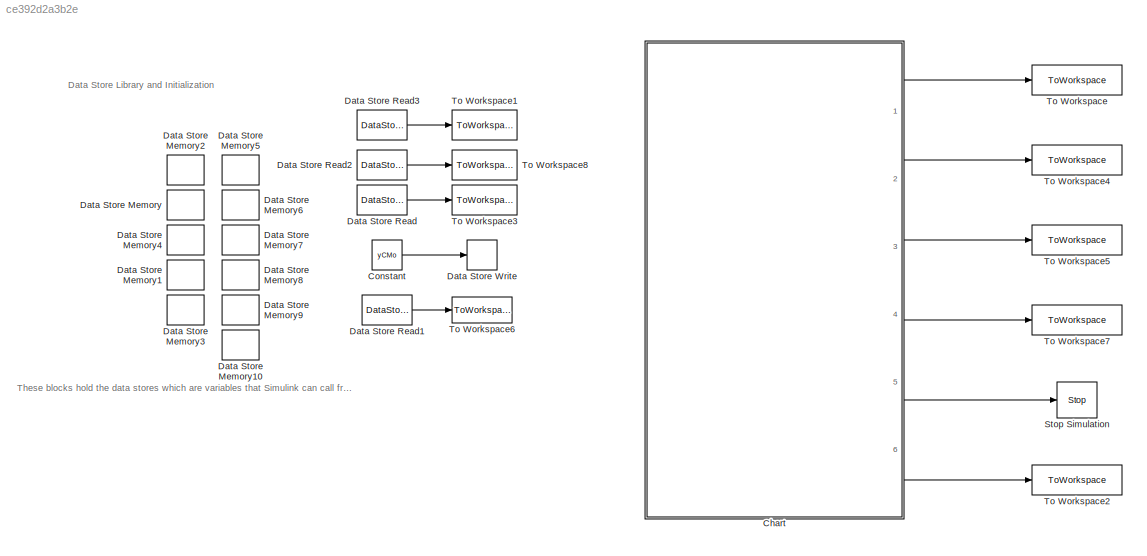
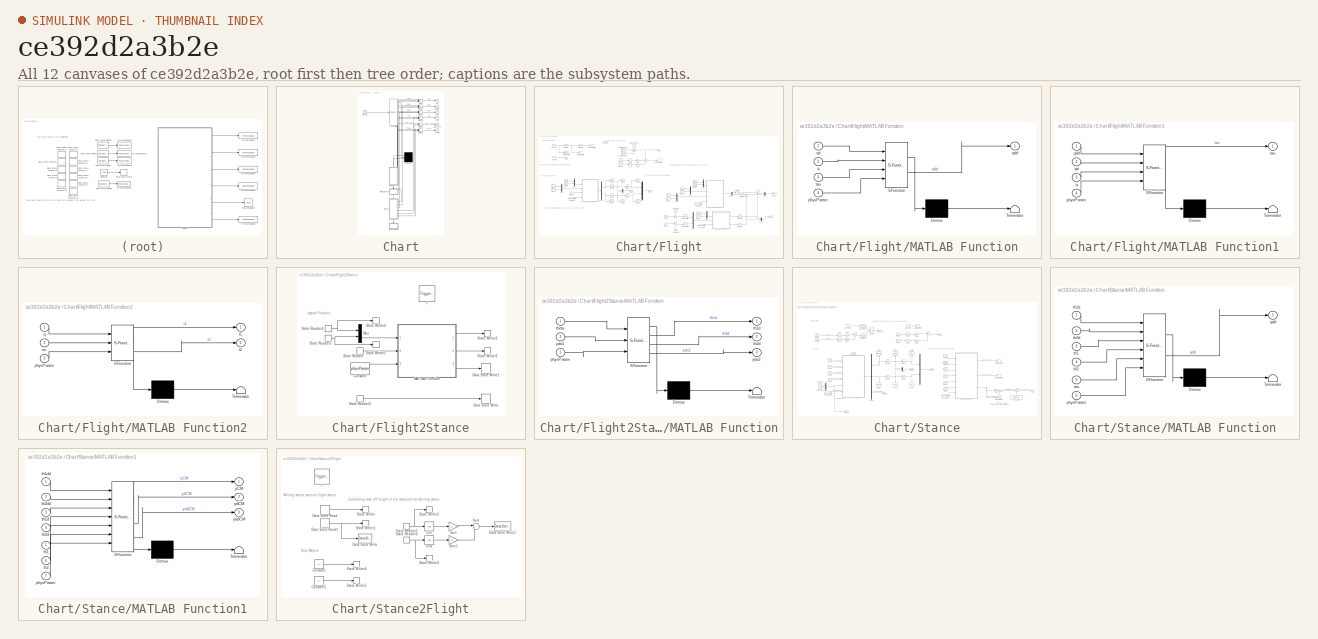
[diagram: thumbnail index - all 12 canvases of the model, root first then tree order]
MODEL slx_ce392d2a3b2e
KIND model
CONFIG AbsTol = auto
CONFIG EnableMultiTasking = off
CONFIG FixedStep = auto
CONFIG MaxStep = 1E-4
CONFIG MinStep = auto
CONFIG RelTol = 1e-9
CONFIG SampleTimeConstraint = Unconstrained
CONFIG SolverName = VariableStepAuto
CONFIG StartTime = 0.0
CONFIG StopTime = inf
BLOCK [SubSystem] Chart
  ErrorFcn = Stateflow.Translate.translate
  PermitHierarchicalResolution = ExplicitOnly
  Ports = [0, 6]
  RequestExecContextInheritance = off
  SFBlockType = Chart
  TreatAsAtomicUnit = on
BLOCK [Demux] Chart/ Demux 
  Outputs = 2
  Ports = [1, 2]
BLOCK [Ground] Chart/ Ground 
BLOCK [Merge] Chart/ Merge 
  Inputs = 3
  Ports = [3, 1]
BLOCK [Merge] Chart/ Merge 1
  Inputs = 3
  Ports = [3, 1]
BLOCK [Merge] Chart/ Merge 2
  Inputs = 3
  Ports = [3, 1]
BLOCK [Merge] Chart/ Merge 3
  Inputs = 3
  Ports = [3, 1]
BLOCK [Merge] Chart/ Merge 4
  Ports = [2, 1]
BLOCK [Merge] Chart/ Merge 5
  Inputs = 3
  Ports = [3, 1]
BLOCK [S-Function] Chart/ SFunction 
  EnableBusSupport = on
  FunctionName = sf_sfun
  PortCounts = [1 7]
  Ports = [1, 7]
  SFcnIsStateOwnerBlock = off
  SFunctionDeploymentMode = off
  Tag = Stateflow S-Function 3
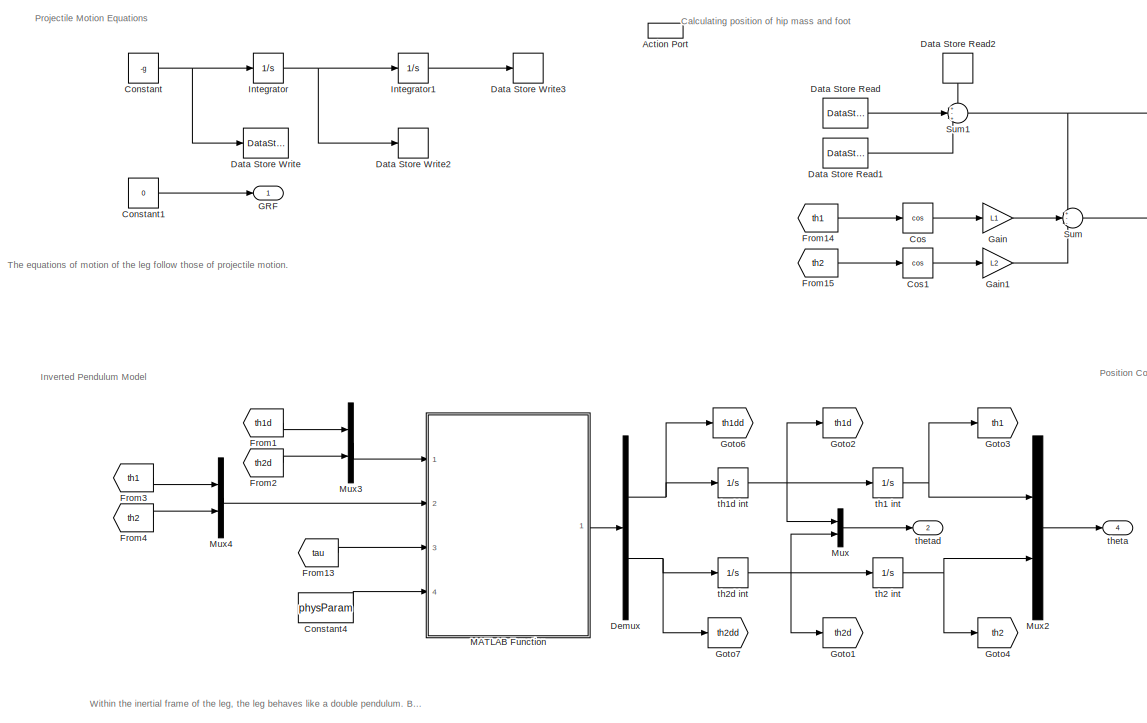
[diagram: Chart/Flight - part 1/3, middle left region]
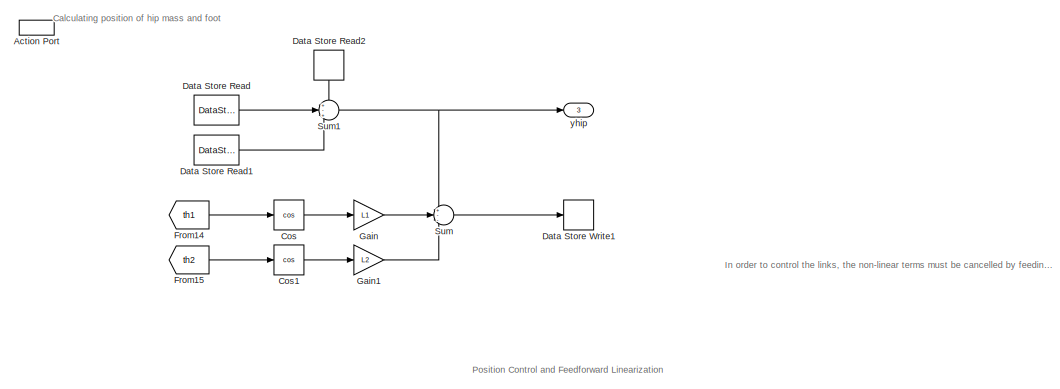
[diagram: Chart/Flight - part 2/3, top center region]
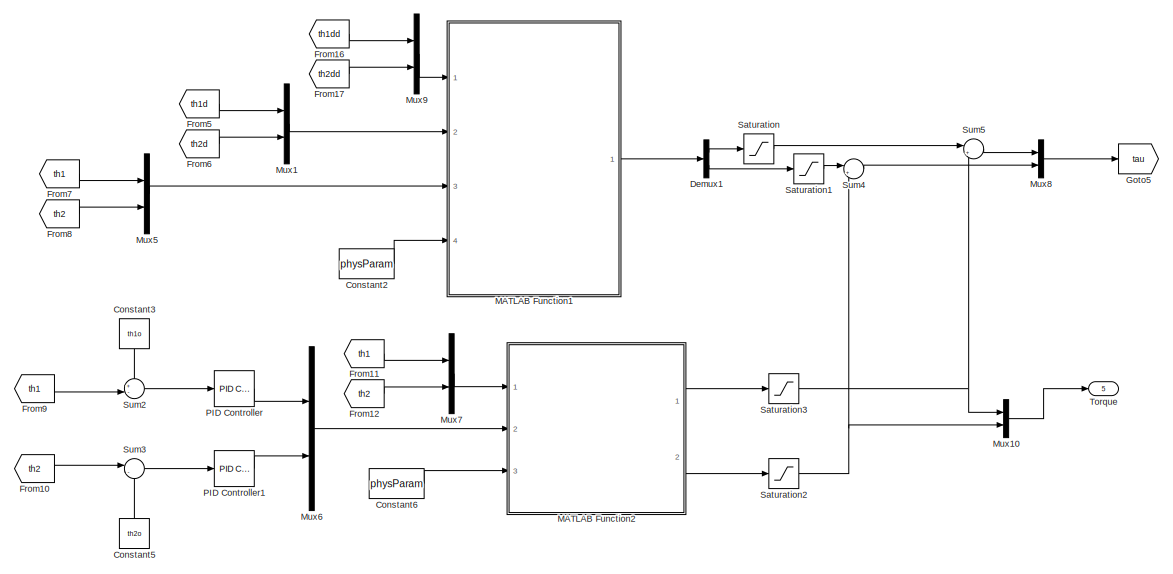
[diagram: Chart/Flight - part 3/3, bottom right region]
BLOCK [SubSystem] Chart/Flight
  Ports = [0, 5, 0, 0, 0, 0, 0, 1]
  PreDeleteFcn = Stateflow.SLINSF.SimulinkMan.removePreDeleteFcn
  RequestExecContextInheritance = off
  UndoDeleteFcn = Stateflow.SLINSF.SimulinkMan.restorePreDeleteFcn
BLOCK [ActionPort] Chart/Flight/Action Port
  CopyFcn = Stateflow.SLINSF.SimulinkMan.removeBlockPreDeleteFcn
  PreDeleteFcn = Stateflow.SLINSF.SimulinkMan.unsafePredeleteFcn
BLOCK [Constant] Chart/Flight/Constant
  Value = -g
BLOCK [Constant] Chart/Flight/Constant1
  Value = 0
BLOCK [Constant] Chart/Flight/Constant2
  Value = physParam
BLOCK [Constant] Chart/Flight/Constant3
  NameLocation = left
  Value = th1o
BLOCK [Constant] Chart/Flight/Constant4
  Value = physParam
BLOCK [Constant] Chart/Flight/Constant5
  NameLocation = right
  Value = th2o
BLOCK [Constant] Chart/Flight/Constant6
  Value = physParam
BLOCK [Trigonometry] Chart/Flight/Cos
  Operator = cos
  Ports = [1, 1]
BLOCK [Trigonometry] Chart/Flight/Cos1
  Operator = cos
  Ports = [1, 1]
BLOCK [DataStoreRead] Chart/Flight/Data Store Read
  DataStoreName = yCMTO
  Ports = [0, 1]
BLOCK [DataStoreRead] Chart/Flight/Data Store Read1
  DataStoreName = yhipTO
  Ports = [0, 1]
BLOCK [DataStoreRead] Chart/Flight/Data Store Read2
  DataStoreName = yCM
  NameLocation = left
  Ports = [0, 1]
BLOCK [DataStoreWrite] Chart/Flight/Data Store Write
  DataStoreName = yddCM
  Ports = [1]
BLOCK [DataStoreWrite] Chart/Flight/Data Store Write1
  DataStoreName = yfoot
  Ports = [1]
BLOCK [DataStoreWrite] Chart/Flight/Data Store Write2
  DataStoreName = ydCM
  Ports = [1]
BLOCK [DataStoreWrite] Chart/Flight/Data Store Write3
  DataStoreName = yCM
  Ports = [1]
BLOCK [Demux] Chart/Flight/Demux
  Outputs = 2
  Ports = [1, 2]
BLOCK [Demux] Chart/Flight/Demux1
  Outputs = 2
  Ports = [1, 2]
BLOCK [From] Chart/Flight/From1
  GotoTag = th1d
BLOCK [From] Chart/Flight/From10
  GotoTag = th2
BLOCK [From] Chart/Flight/From11
  GotoTag = th1
BLOCK [From] Chart/Flight/From12
  GotoTag = th2
BLOCK [From] Chart/Flight/From13
  GotoTag = tau
BLOCK [From] Chart/Flight/From14
  GotoTag = th1
BLOCK [From] Chart/Flight/From15
  GotoTag = th2
BLOCK [From] Chart/Flight/From16
  GotoTag = th1dd
BLOCK [From] Chart/Flight/From17
  GotoTag = th2dd
BLOCK [From] Chart/Flight/From2
  GotoTag = th2d
BLOCK [From] Chart/Flight/From3
  GotoTag = th1
BLOCK [From] Chart/Flight/From4
  GotoTag = th2
BLOCK [From] Chart/Flight/From5
  GotoTag = th1d
BLOCK [From] Chart/Flight/From6
  GotoTag = th2d
BLOCK [From] Chart/Flight/From7
  GotoTag = th1
BLOCK [From] Chart/Flight/From8
  GotoTag = th2
BLOCK [From] Chart/Flight/From9
  GotoTag = th1
BLOCK [Outport] Chart/Flight/GRF
BLOCK [Gain] Chart/Flight/Gain
  Gain = L1
BLOCK [Gain] Chart/Flight/Gain1
  Gain = L2
BLOCK [Goto] Chart/Flight/Goto1
  GotoTag = th2d
BLOCK [Goto] Chart/Flight/Goto2
  GotoTag = th1d
BLOCK [Goto] Chart/Flight/Goto3
  GotoTag = th1
BLOCK [Goto] Chart/Flight/Goto4
  GotoTag = th2
BLOCK [Goto] Chart/Flight/Goto5
  GotoTag = tau
BLOCK [Goto] Chart/Flight/Goto6
  GotoTag = th1dd
BLOCK [Goto] Chart/Flight/Goto7
  GotoTag = th2dd
BLOCK [Integrator] Chart/Flight/Integrator
  ContinuousStateAttributes = 'ydCM'
  Ports = [1, 1]
BLOCK [Integrator] Chart/Flight/Integrator1
  ContinuousStateAttributes = 'yCM'
  InitialCondition = initHeight
  Ports = [1, 1]
BLOCK [SubSystem] Chart/Flight/MATLAB Function
  ErrorFcn = Stateflow.Translate.translate
  PermitHierarchicalResolution = ExplicitOnly
  Ports = [4, 1]
  RequestExecContextInheritance = off
  SFBlockType = MATLAB Function
  TreatAsAtomicUnit = on
BLOCK [Demux] Chart/Flight/MATLAB Function/ Demux 
  Outputs = 1
  Ports = [1, 1]
BLOCK [S-Function] Chart/Flight/MATLAB Function/ SFunction 
  EnableBusSupport = off
  FunctionName = sf_sfun
  PortCounts = [4 2]
  Ports = [4, 2]
  SFcnIsStateOwnerBlock = off
  SFunctionDeploymentMode = off
  Tag = Stateflow S-Function 5
BLOCK [Terminator] Chart/Flight/MATLAB Function/ Terminator 
BLOCK [Inport] Chart/Flight/MATLAB Function/physParam
  Port = 4
BLOCK [Inport] Chart/Flight/MATLAB Function/q
  Port = 2
BLOCK [Inport] Chart/Flight/MATLAB Function/qd
BLOCK [Outport] Chart/Flight/MATLAB Function/qdd
BLOCK [Inport] Chart/Flight/MATLAB Function/tau
  Port = 3
BLOCK [SubSystem] Chart/Flight/MATLAB Function1
  ErrorFcn = Stateflow.Translate.translate
  PermitHierarchicalResolution = ExplicitOnly
  Ports = [4, 1]
  RequestExecContextInheritance = off
  SFBlockType = MATLAB Function
  TreatAsAtomicUnit = on
BLOCK [Demux] Chart/Flight/MATLAB Function1/ Demux 
  Outputs = 1
  Ports = [1, 1]
BLOCK [S-Function] Chart/Flight/MATLAB Function1/ SFunction 
  EnableBusSupport = off
  FunctionName = sf_sfun
  PortCounts = [4 2]
  Ports = [4, 2]
  SFcnIsStateOwnerBlock = off
  SFunctionDeploymentMode = off
  Tag = Stateflow S-Function 6
BLOCK [Terminator] Chart/Flight/MATLAB Function1/ Terminator 
BLOCK [Inport] Chart/Flight/MATLAB Function1/physParam
  Port = 4
BLOCK [Inport] Chart/Flight/MATLAB Function1/q
  Port = 3
BLOCK [Inport] Chart/Flight/MATLAB Function1/qd
  Port = 2
BLOCK [Inport] Chart/Flight/MATLAB Function1/qdd
BLOCK [Outport] Chart/Flight/MATLAB Function1/tau
BLOCK [SubSystem] Chart/Flight/MATLAB Function2
  ErrorFcn = Stateflow.Translate.translate
  PermitHierarchicalResolution = ExplicitOnly
  Ports = [3, 2]
  RequestExecContextInheritance = off
  SFBlockType = MATLAB Function
  TreatAsAtomicUnit = on
BLOCK [Demux] Chart/Flight/MATLAB Function2/ Demux 
  Outputs = 1
  Ports = [1, 1]
BLOCK [S-Function] Chart/Flight/MATLAB Function2/ SFunction 
  EnableBusSupport = off
  FunctionName = sf_sfun
  PortCounts = [3 3]
  Ports = [3, 3]
  SFcnIsStateOwnerBlock = off
  SFunctionDeploymentMode = off
  Tag = Stateflow S-Function 7
BLOCK [Terminator] Chart/Flight/MATLAB Function2/ Terminator 
BLOCK [Inport] Chart/Flight/MATLAB Function2/err
  Port = 2
BLOCK [Inport] Chart/Flight/MATLAB Function2/physParam
  Port = 3
BLOCK [Inport] Chart/Flight/MATLAB Function2/q
BLOCK [Outport] Chart/Flight/MATLAB Function2/t1
BLOCK [Outport] Chart/Flight/MATLAB Function2/t2
  Port = 2
BLOCK [Mux] Chart/Flight/Mux
  DisplayOption = bar
  Inputs = 2
  Ports = [2, 1]
BLOCK [Mux] Chart/Flight/Mux1
  DisplayOption = bar
  Inputs = 2
  Ports = [2, 1]
BLOCK [Mux] Chart/Flight/Mux10
  DisplayOption = bar
  Inputs = 2
  Ports = [2, 1]
BLOCK [Mux] Chart/Flight/Mux2
  DisplayOption = bar
  Inputs = 2
  Ports = [2, 1]
BLOCK [Mux] Chart/Flight/Mux3
  DisplayOption = bar
  Inputs = 2
  Ports = [2, 1]
BLOCK [Mux] Chart/Flight/Mux4
  DisplayOption = bar
  Inputs = 2
  Ports = [2, 1]
BLOCK [Mux] Chart/Flight/Mux5
  DisplayOption = bar
  Inputs = 2
  Ports = [2, 1]
BLOCK [Mux] Chart/Flight/Mux6
  DisplayOption = bar
  Inputs = 2
  Ports = [2, 1]
BLOCK [Mux] Chart/Flight/Mux7
  DisplayOption = bar
  Inputs = 2
  Ports = [2, 1]
BLOCK [Mux] Chart/Flight/Mux8
  DisplayOption = bar
  Inputs = 2
  Ports = [2, 1]
BLOCK [Mux] Chart/Flight/Mux9
  DisplayOption = bar
  Inputs = 2
  Ports = [2, 1]
BLOCK [Reference] Chart/Flight/PID Controller  REF=pid_lib/PID Controller
  Ports = [1, 1]
  SourceBlock = pid_lib/PID Controller
  SourceProductBaseCode = SL
  SourceType = PID 1dof
BLOCK [Reference] Chart/Flight/PID Controller1  REF=pid_lib/PID Controller
  Ports = [1, 1]
  SourceBlock = pid_lib/PID Controller
  SourceProductBaseCode = SL
  SourceType = PID 1dof
BLOCK [Saturate] Chart/Flight/Saturation
  LowerLimit = -8
  UpperLimit = 8
BLOCK [Saturate] Chart/Flight/Saturation1
  LowerLimit = -8
  UpperLimit = 8
BLOCK [Saturate] Chart/Flight/Saturation2
  LowerLimit = -5
  UpperLimit = 5
BLOCK [Saturate] Chart/Flight/Saturation3
  LowerLimit = -5
  UpperLimit = 5
BLOCK [Sum] Chart/Flight/Sum
  Inputs = +--
  Ports = [3, 1]
BLOCK [Sum] Chart/Flight/Sum1
  Inputs = +-+
  Ports = [3, 1]
BLOCK [Sum] Chart/Flight/Sum2
  Inputs = +-|
  Ports = [2, 1]
BLOCK [Sum] Chart/Flight/Sum3
  Inputs = |-+
  Ports = [2, 1]
BLOCK [Sum] Chart/Flight/Sum4
  Inputs = |++
  Ports = [2, 1]
BLOCK [Sum] Chart/Flight/Sum5
  Inputs = |++
  Ports = [2, 1]
BLOCK [Outport] Chart/Flight/Torque
  Port = 5
BLOCK [Integrator] Chart/Flight/th1 int
  ContinuousStateAttributes = 'th1'
  InitialCondition = th1o
  Ports = [1, 1]
BLOCK [Integrator] Chart/Flight/th1d int
  ContinuousStateAttributes = 'th1d'
  Ports = [1, 1]
BLOCK [Integrator] Chart/Flight/th2 int
  ContinuousStateAttributes = 'th2'
  InitialCondition = th2o
  Ports = [1, 1]
BLOCK [Integrator] Chart/Flight/th2d int
  ContinuousStateAttributes = 'th2d'
  Ports = [1, 1]
BLOCK [Outport] Chart/Flight/theta
  Port = 4
BLOCK [Outport] Chart/Flight/thetad
  Port = 2
BLOCK [Outport] Chart/Flight/yhip
  Port = 3
BLOCK [SubSystem] Chart/Flight2Stance
  Ports = [0, 0, 0, 1]
  PreDeleteFcn = Stateflow.SLINSF.SimulinkMan.removePreDeleteFcn
  RequestExecContextInheritance = off
  UndoDeleteFcn = Stateflow.SLINSF.SimulinkMan.restorePreDeleteFcn
BLOCK [Constant] Chart/Flight2Stance/Constant
  Value = physParam
BLOCK [DataStoreWrite] Chart/Flight2Stance/Data Store Write
  DataStoreName = yCM
  Ports = [1]
BLOCK [DataStoreWrite] Chart/Flight2Stance/Data Store Write1
  DataStoreName = ydCM
  Ports = [1]
BLOCK [SubSystem] Chart/Flight2Stance/MATLAB Function
  ErrorFcn = Stateflow.Translate.translate
  PermitHierarchicalResolution = ExplicitOnly
  Ports = [3, 3]
  RequestExecContextInheritance = off
  SFBlockType = MATLAB Function
  TreatAsAtomicUnit = on
BLOCK [Demux] Chart/Flight2Stance/MATLAB Function/ Demux 
  Outputs = 1
  Ports = [1, 1]
BLOCK [S-Function] Chart/Flight2Stance/MATLAB Function/ SFunction 
  EnableBusSupport = off
  FunctionName = sf_sfun
  PortCounts = [3 4]
  Ports = [3, 4]
  SFcnIsStateOwnerBlock = off
  SFunctionDeploymentMode = off
  Tag = Stateflow S-Function 4
BLOCK [Terminator] Chart/Flight2Stance/MATLAB Function/ Terminator 
BLOCK [Inport] Chart/Flight2Stance/MATLAB Function/physParam
  Port = 3
BLOCK [Outport] Chart/Flight2Stance/MATLAB Function/th1d
BLOCK [Outport] Chart/Flight2Stance/MATLAB Function/th2d
  Port = 2
BLOCK [Inport] Chart/Flight2Stance/MATLAB Function/theta
BLOCK [Inport] Chart/Flight2Stance/MATLAB Function/ydo1
  Port = 2
BLOCK [Outport] Chart/Flight2Stance/MATLAB Function/ydo2
  Port = 3
BLOCK [Mux] Chart/Flight2Stance/Mux
  DisplayOption = bar
  Inputs = 2
  Ports = [2, 1]
BLOCK [StateReader] Chart/Flight2Stance/State Reader
  StateName = ydCM
  StateOwnerBlock = ../../Flight/Integrator
BLOCK [StateReader] Chart/Flight2Stance/State Reader3
  StateName = yCM
  StateOwnerBlock = ../../Flight/Integrator1
BLOCK [StateReader] Chart/Flight2Stance/State Reader4
  StateName = th1
  StateOwnerBlock = ../../Flight/th1 int
BLOCK [StateReader] Chart/Flight2Stance/State Reader5
  StateName = th2
  StateOwnerBlock = ../../Flight/th2 int
BLOCK [StateWriter] Chart/Flight2Stance/State Writer2
  StateName = th1d
  StateOwnerBlock = ../../Stance/th1d int.
BLOCK [StateWriter] Chart/Flight2Stance/State Writer3
  StateName = th2d
  StateOwnerBlock = ../../Stance/th2d int.
BLOCK [StateWriter] Chart/Flight2Stance/State Writer4
  StateName = th1
  StateOwnerBlock = ../../Stance/th1 int.
BLOCK [StateWriter] Chart/Flight2Stance/State Writer5
  StateName = th2
  StateOwnerBlock = ../../Stance/th2 int.
BLOCK [TriggerPort] Chart/Flight2Stance/f
  CopyFcn = Stateflow.SLINSF.SimulinkMan.removeBlockPreDeleteFcn
  Ports = []
  PreDeleteFcn = Stateflow.SLINSF.SimulinkMan.unsafePredeleteFcn
  StatesWhenEnabling = held
  TriggerType = function-call
  VariantControl = (inherit)
BLOCK [Outport] Chart/GRF
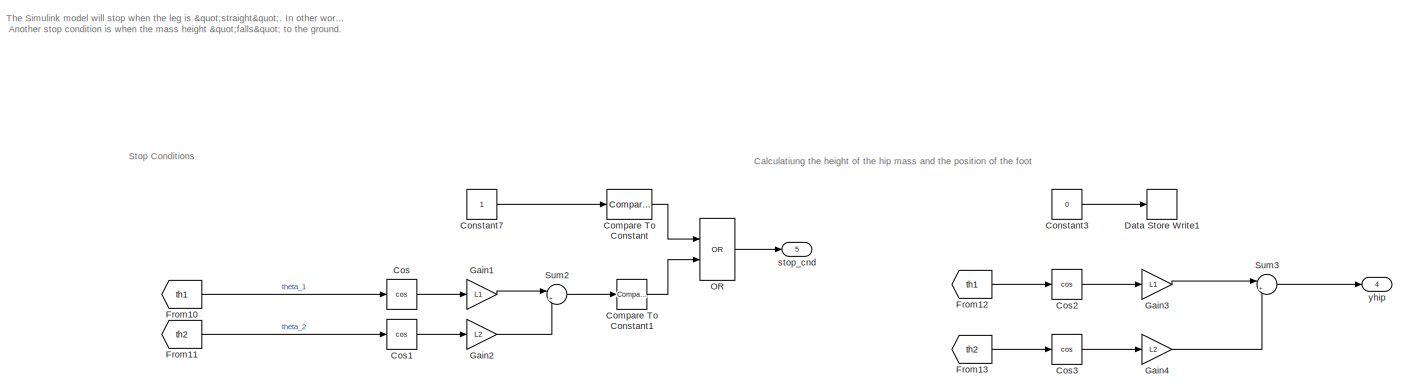
[diagram: Chart/Stance - part 1/3, top left region]
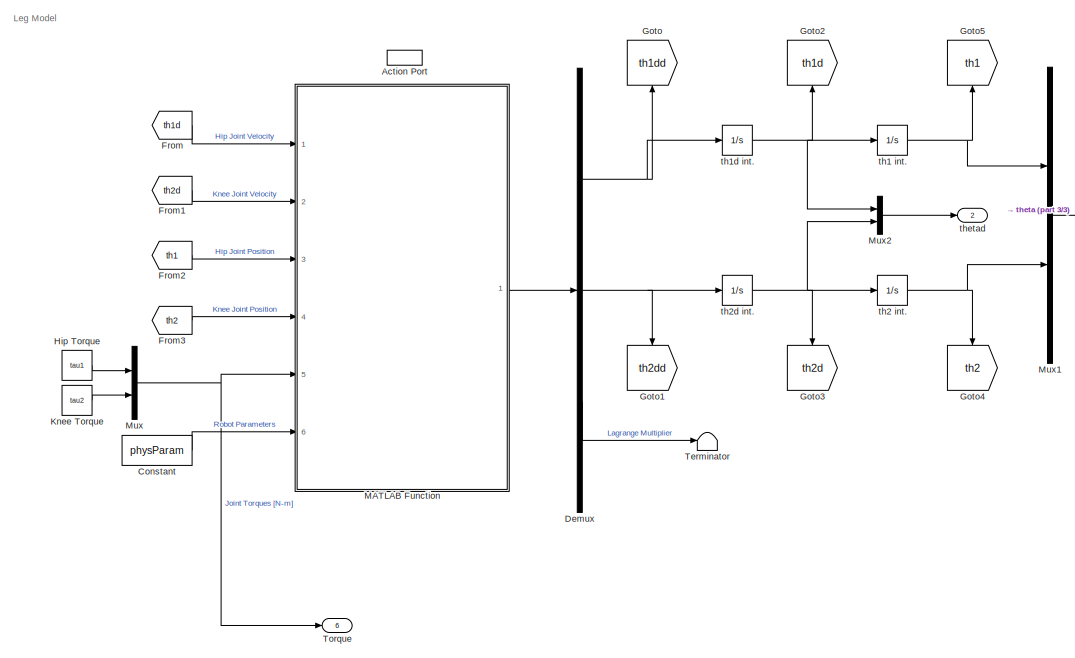
[diagram: Chart/Stance - part 2/3, bottom left region]
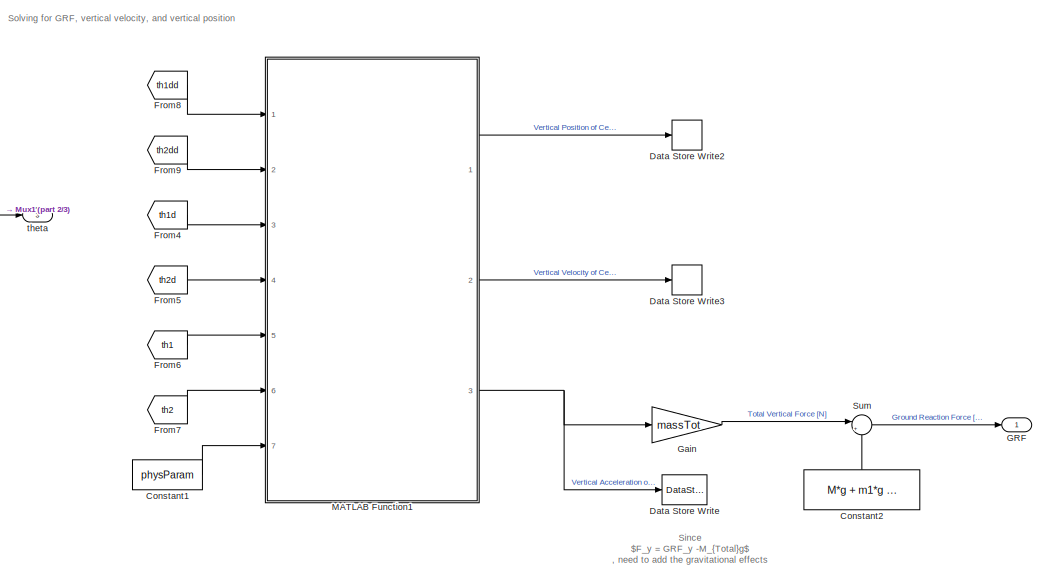
[diagram: Chart/Stance - part 3/3, middle right region]
BLOCK [SubSystem] Chart/Stance
  Ports = [0, 6, 0, 0, 0, 0, 0, 1]
  PreDeleteFcn = Stateflow.SLINSF.SimulinkMan.removePreDeleteFcn
  RequestExecContextInheritance = off
  UndoDeleteFcn = Stateflow.SLINSF.SimulinkMan.restorePreDeleteFcn
BLOCK [ActionPort] Chart/Stance/Action Port
  CopyFcn = Stateflow.SLINSF.SimulinkMan.removeBlockPreDeleteFcn
  PreDeleteFcn = Stateflow.SLINSF.SimulinkMan.unsafePredeleteFcn
BLOCK [Reference] Chart/Stance/Compare To Constant  REF=simulink/Logic and Bit
Operations/Compare
To Constant
  NameLocation = top
  Ports = [1, 1]
  SourceBlock = simulink/Logic and Bit\nOperations/Compare\nTo Constant
  SourceProductBaseCode = SL
  SourceType = Compare To Constant
BLOCK [Reference] Chart/Stance/Compare To Constant1  REF=simulink/Logic and Bit
Operations/Compare
To Constant
  Ports = [1, 1]
  SourceBlock = simulink/Logic and Bit\nOperations/Compare\nTo Constant
  SourceProductBaseCode = SL
  SourceType = Compare To Constant
BLOCK [Constant] Chart/Stance/Constant
  Value = physParam
BLOCK [Constant] Chart/Stance/Constant1
  Value = physParam
BLOCK [Constant] Chart/Stance/Constant2
  NameLocation = right
  Value = M*g + m1*g + m2*g
BLOCK [Constant] Chart/Stance/Constant3
  Value = 0
BLOCK [Constant] Chart/Stance/Constant7
BLOCK [Trigonometry] Chart/Stance/Cos
  Operator = cos
  Ports = [1, 1]
BLOCK [Trigonometry] Chart/Stance/Cos1
  Operator = cos
  Ports = [1, 1]
BLOCK [Trigonometry] Chart/Stance/Cos2
  Operator = cos
  Ports = [1, 1]
BLOCK [Trigonometry] Chart/Stance/Cos3
  Operator = cos
  Ports = [1, 1]
BLOCK [DataStoreWrite] Chart/Stance/Data Store Write
  DataStoreName = yddCM
  Ports = [1]
BLOCK [DataStoreWrite] Chart/Stance/Data Store Write1
  DataStoreName = yfoot
  Ports = [1]
BLOCK [DataStoreWrite] Chart/Stance/Data Store Write2
  DataStoreName = yCM
  Ports = [1]
BLOCK [DataStoreWrite] Chart/Stance/Data Store Write3
  DataStoreName = ydCM
  Ports = [1]
BLOCK [Demux] Chart/Stance/Demux
  Outputs = 3
  Ports = [1, 3]
BLOCK [From] Chart/Stance/From
  GotoTag = th1d
BLOCK [From] Chart/Stance/From1
  GotoTag = th2d
BLOCK [From] Chart/Stance/From10
  GotoTag = th1
BLOCK [From] Chart/Stance/From11
  GotoTag = th2
BLOCK [From] Chart/Stance/From12
  GotoTag = th1
BLOCK [From] Chart/Stance/From13
  GotoTag = th2
BLOCK [From] Chart/Stance/From2
  GotoTag = th1
BLOCK [From] Chart/Stance/From3
  GotoTag = th2
BLOCK [From] Chart/Stance/From4
  GotoTag = th1d
BLOCK [From] Chart/Stance/From5
  GotoTag = th2d
BLOCK [From] Chart/Stance/From6
  GotoTag = th1
BLOCK [From] Chart/Stance/From7
  GotoTag = th2
BLOCK [From] Chart/Stance/From8
  GotoTag = th1dd
BLOCK [From] Chart/Stance/From9
  GotoTag = th2dd
BLOCK [Outport] Chart/Stance/GRF
BLOCK [Gain] Chart/Stance/Gain
  Gain = massTot
BLOCK [Gain] Chart/Stance/Gain1
  Gain = L1
BLOCK [Gain] Chart/Stance/Gain2
  Gain = L2
BLOCK [Gain] Chart/Stance/Gain3
  Gain = L1
BLOCK [Gain] Chart/Stance/Gain4
  Gain = L2
BLOCK [Goto] Chart/Stance/Goto
  GotoTag = th1dd
  NameLocation = right
BLOCK [Goto] Chart/Stance/Goto1
  GotoTag = th2dd
  NameLocation = left
BLOCK [Goto] Chart/Stance/Goto2
  GotoTag = th1d
  NameLocation = right
BLOCK [Goto] Chart/Stance/Goto3
  GotoTag = th2d
  NameLocation = left
BLOCK [Goto] Chart/Stance/Goto4
  GotoTag = th2
  NameLocation = left
BLOCK [Goto] Chart/Stance/Goto5
  GotoTag = th1
  NameLocation = right
BLOCK [Constant] Chart/Stance/Hip Torque
  NameLocation = top
  Value = tau1
BLOCK [Constant] Chart/Stance/Knee Torque
  Value = tau2
BLOCK [SubSystem] Chart/Stance/MATLAB Function
  ErrorFcn = Stateflow.Translate.translate
  PermitHierarchicalResolution = ExplicitOnly
  Ports = [6, 1]
  RequestExecContextInheritance = off
  SFBlockType = MATLAB Function
  TreatAsAtomicUnit = on
BLOCK [Demux] Chart/Stance/MATLAB Function/ Demux 
  Outputs = 1
  Ports = [1, 1]
BLOCK [S-Function] Chart/Stance/MATLAB Function/ SFunction 
  EnableBusSupport = off
  FunctionName = sf_sfun
  PortCounts = [6 2]
  Ports = [6, 2]
  SFcnIsStateOwnerBlock = off
  SFunctionDeploymentMode = off
  Tag = Stateflow S-Function 2
BLOCK [Terminator] Chart/Stance/MATLAB Function/ Terminator 
BLOCK [Inport] Chart/Stance/MATLAB Function/physParam
  Port = 6
BLOCK [Outport] Chart/Stance/MATLAB Function/qdd
BLOCK [Inport] Chart/Stance/MATLAB Function/tau
  Port = 5
BLOCK [Inport] Chart/Stance/MATLAB Function/th1
  Port = 3
BLOCK [Inport] Chart/Stance/MATLAB Function/th1d
BLOCK [Inport] Chart/Stance/MATLAB Function/th2
  Port = 4
BLOCK [Inport] Chart/Stance/MATLAB Function/th2d
  Port = 2
BLOCK [SubSystem] Chart/Stance/MATLAB Function1
  ErrorFcn = Stateflow.Translate.translate
  PermitHierarchicalResolution = ExplicitOnly
  Ports = [7, 3]
  RequestExecContextInheritance = off
  SFBlockType = MATLAB Function
  TreatAsAtomicUnit = on
BLOCK [Demux] Chart/Stance/MATLAB Function1/ Demux 
  Outputs = 1
  Ports = [1, 1]
BLOCK [S-Function] Chart/Stance/MATLAB Function1/ SFunction 
  EnableBusSupport = off
  FunctionName = sf_sfun
  PortCounts = [7 4]
  Ports = [7, 4]
  SFcnIsStateOwnerBlock = off
  SFunctionDeploymentMode = off
  Tag = Stateflow S-Function 1
BLOCK [Terminator] Chart/Stance/MATLAB Function1/ Terminator 
BLOCK [Inport] Chart/Stance/MATLAB Function1/physParam
  Port = 7
BLOCK [Inport] Chart/Stance/MATLAB Function1/th1
  Port = 5
BLOCK [Inport] Chart/Stance/MATLAB Function1/th1d
  Port = 3
BLOCK [Inport] Chart/Stance/MATLAB Function1/th1dd
BLOCK [Inport] Chart/Stance/MATLAB Function1/th2
  Port = 6
BLOCK [Inport] Chart/Stance/MATLAB Function1/th2d
  Port = 4
BLOCK [Inport] Chart/Stance/MATLAB Function1/th2dd
  Port = 2
BLOCK [Outport] Chart/Stance/MATLAB Function1/yCM
BLOCK [Outport] Chart/Stance/MATLAB Function1/ydCM
  Port = 2
BLOCK [Outport] Chart/Stance/MATLAB Function1/yddCM
  Port = 3
BLOCK [Mux] Chart/Stance/Mux
  DisplayOption = bar
  Inputs = 2
  Ports = [2, 1]
BLOCK [Mux] Chart/Stance/Mux1
  DisplayOption = bar
  Inputs = 2
  Ports = [2, 1]
BLOCK [Mux] Chart/Stance/Mux2
  DisplayOption = bar
  Inputs = 2
  Ports = [2, 1]
BLOCK [Logic] Chart/Stance/OR
  AllPortsSameDT = off
  IconShape = distinctive
  Operator = OR
  OutDataTypeStr = boolean
  Ports = [2, 1]
BLOCK [Sum] Chart/Stance/Sum
  Inputs = |++
  Ports = [2, 1]
BLOCK [Sum] Chart/Stance/Sum2
  Inputs = |++
  Ports = [2, 1]
BLOCK [Sum] Chart/Stance/Sum3
  Inputs = |++
  Ports = [2, 1]
BLOCK [Terminator] Chart/Stance/Terminator
BLOCK [Outport] Chart/Stance/Torque
  Port = 6
BLOCK [Outport] Chart/Stance/stop_cnd
  Port = 5
BLOCK [Integrator] Chart/Stance/th1 int.
  ContinuousStateAttributes = 'th1'
  InitialCondition = th1o
  Ports = [1, 1]
BLOCK [Integrator] Chart/Stance/th1d int.
  ContinuousStateAttributes = 'th1d'
  Ports = [1, 1]
BLOCK [Integrator] Chart/Stance/th2 int.
  ContinuousStateAttributes = 'th2'
  InitialCondition = th2o
  Ports = [1, 1]
BLOCK [Integrator] Chart/Stance/th2d int.
  ContinuousStateAttributes = 'th2d'
  Ports = [1, 1]
BLOCK [Outport] Chart/Stance/theta
  Port = 3
BLOCK [Outport] Chart/Stance/thetad
  Port = 2
BLOCK [Outport] Chart/Stance/yhip
  Port = 4
BLOCK [SubSystem] Chart/Stance2Flight
  Ports = [0, 0, 0, 1]
  PreDeleteFcn = Stateflow.SLINSF.SimulinkMan.removePreDeleteFcn
  RequestExecContextInheritance = off
  UndoDeleteFcn = Stateflow.SLINSF.SimulinkMan.restorePreDeleteFcn
BLOCK [Constant] Chart/Stance2Flight/Constant
  Value = 0
BLOCK [Constant] Chart/Stance2Flight/Constant1
  Value = 0
BLOCK [Trigonometry] Chart/Stance2Flight/Cos
  Operator = cos
  Ports = [1, 1]
BLOCK [Trigonometry] Chart/Stance2Flight/Cos1
  Operator = cos
  Ports = [1, 1]
BLOCK [DataStoreRead] Chart/Stance2Flight/Data Store Read
  DataStoreName = ydCM
  Ports = [0, 1]
BLOCK [DataStoreRead] Chart/Stance2Flight/Data Store Read1
  DataStoreName = yCM
  Ports = [0, 1]
BLOCK [DataStoreWrite] Chart/Stance2Flight/Data Store Write
  DataStoreName = yCMTO
  Ports = [1]
BLOCK [DataStoreWrite] Chart/Stance2Flight/Data Store Write1
  DataStoreName = yhipTO
  Ports = [1]
BLOCK [Gain] Chart/Stance2Flight/Gain
  Gain = L1
BLOCK [Gain] Chart/Stance2Flight/Gain1
  Gain = L2
BLOCK [StateReader] Chart/Stance2Flight/State Reader2
  StateName = th1
  StateOwnerBlock = ../../Stance/th1 int.
BLOCK [StateReader] Chart/Stance2Flight/State Reader3
  StateName = th2
  StateOwnerBlock = ../../Stance/th2 int.
BLOCK [StateWriter] Chart/Stance2Flight/State Writer
  StateName = ydCM
  StateOwnerBlock = ../../Flight/Integrator
BLOCK [StateWriter] Chart/Stance2Flight/State Writer1
  StateName = yCM
  StateOwnerBlock = ../../Flight/Integrator1
BLOCK [StateWriter] Chart/Stance2Flight/State Writer2
  StateName = th1
  StateOwnerBlock = ../../Flight/th1 int
BLOCK [StateWriter] Chart/Stance2Flight/State Writer3
  StateName = th2
  StateOwnerBlock = ../../Flight/th2 int
BLOCK [StateWriter] Chart/Stance2Flight/State Writer4
  StateName = th1d
  StateOwnerBlock = ../../Flight/th1d int
BLOCK [StateWriter] Chart/Stance2Flight/State Writer5
  StateName = th2d
  StateOwnerBlock = ../../Flight/th2d int
BLOCK [Sum] Chart/Stance2Flight/Sum
  Inputs = |++
  Ports = [2, 1]
BLOCK [TriggerPort] Chart/Stance2Flight/f
  CopyFcn = Stateflow.SLINSF.SimulinkMan.removeBlockPreDeleteFcn
  Ports = []
  PreDeleteFcn = Stateflow.SLINSF.SimulinkMan.unsafePredeleteFcn
  StatesWhenEnabling = held
  TriggerType = function-call
  VariantControl = (inherit)
BLOCK [Outport] Chart/Torque
  Port = 6
BLOCK [Outport] Chart/stop_cnd
  Port = 5
BLOCK [Outport] Chart/theta
  Port = 3
BLOCK [Outport] Chart/thetad
  Port = 2
BLOCK [Outport] Chart/yhip
  Port = 4
BLOCK [Constant] Constant
  Value = yCMo
BLOCK [DataStoreMemory] Data Store Memory
  DataStoreName = yddCM
  LockScale = on
  OutDataTypeStr = double
  ShowAdditionalParam = off
  SignalType = real
BLOCK [DataStoreMemory] Data Store Memory1
  DataStoreName = yTD
  LockScale = on
  OutDataTypeStr = double
  ShowAdditionalParam = off
  SignalType = real
BLOCK [DataStoreMemory] Data Store Memory10
  DataStoreName = th2TD
  LockScale = on
  OutDataTypeStr = double
  ShowAdditionalParam = off
  SignalType = real
BLOCK [DataStoreMemory] Data Store Memory2
  DataStoreName = yhipTO
  LockScale = on
  OutDataTypeStr = double
  ShowAdditionalParam = off
  SignalType = real
BLOCK [DataStoreMemory] Data Store Memory3
  DataStoreName = yCMTO
  LockScale = on
  OutDataTypeStr = double
  ShowAdditionalParam = off
  SignalType = real
BLOCK [DataStoreMemory] Data Store Memory4
  DataStoreName = yfoot
  LockScale = on
  OutDataTypeStr = double
  ShowAdditionalParam = off
  SignalType = real
BLOCK [DataStoreMemory] Data Store Memory5
  DataStoreName = ydCM
  LockScale = on
  OutDataTypeStr = double
  ShowAdditionalParam = off
  SignalType = real
BLOCK [DataStoreMemory] Data Store Memory6
  DataStoreName = yCM
  LockScale = on
  OutDataTypeStr = double
  ShowAdditionalParam = off
  SignalType = real
BLOCK [DataStoreMemory] Data Store Memory7
  DataStoreName = tTD
  LockScale = on
  OutDataTypeStr = double
  ShowAdditionalParam = off
  SignalType = real
BLOCK [DataStoreMemory] Data Store Memory8
  DataStoreName = ydTD
  LockScale = on
  OutDataTypeStr = double
  ShowAdditionalParam = off
  SignalType = real
BLOCK [DataStoreMemory] Data Store Memory9
  DataStoreName = th1TD
  LockScale = on
  OutDataTypeStr = double
  ShowAdditionalParam = off
  SignalType = real
BLOCK [DataStoreRead] Data Store Read
  DataStoreName = yddCM
  Ports = [0, 1]
BLOCK [DataStoreRead] Data Store Read1
  DataStoreName = yfoot
  Ports = [0, 1]
BLOCK [DataStoreRead] Data Store Read2
  DataStoreName = ydCM
  Ports = [0, 1]
BLOCK [DataStoreRead] Data Store Read3
  DataStoreName = yCM
  Ports = [0, 1]
BLOCK [DataStoreWrite] Data Store Write
  DataStoreName = yTD
  Ports = [1]
BLOCK [Stop] Stop Simulation
BLOCK [ToWorkspace] To Workspace
  FixptAsFi = on
  MaxDataPoints = inf
  Ports = [1]
  SampleTime = -1
  VariableName = GRF
BLOCK [ToWorkspace] To Workspace1
  FixptAsFi = on
  MaxDataPoints = inf
  Ports = [1]
  SampleTime = -1
  VariableName = yCM
BLOCK [ToWorkspace] To Workspace2
  FixptAsFi = on
  MaxDataPoints = inf
  Ports = [1]
  SampleTime = -1
  VariableName = Tau
BLOCK [ToWorkspace] To Workspace3
  FixptAsFi = on
  MaxDataPoints = inf
  Ports = [1]
  SampleTime = -1
  VariableName = yddCM
BLOCK [ToWorkspace] To Workspace4
  FixptAsFi = on
  MaxDataPoints = inf
  Ports = [1]
  SampleTime = -1
  VariableName = thetad
BLOCK [ToWorkspace] To Workspace5
  FixptAsFi = on
  MaxDataPoints = inf
  Ports = [1]
  SampleTime = -1
  VariableName = theta
BLOCK [ToWorkspace] To Workspace6
  FixptAsFi = on
  MaxDataPoints = inf
  Ports = [1]
  SampleTime = -1
  VariableName = yfoot
BLOCK [ToWorkspace] To Workspace7
  FixptAsFi = on
  MaxDataPoints = inf
  Ports = [1]
  SampleTime = -1
  VariableName = yhip
BLOCK [ToWorkspace] To Workspace8
  FixptAsFi = on
  MaxDataPoints = inf
  Ports = [1]
  SampleTime = -1
  VariableName = ydCM
ANNOTATION (root): These blocks hold the data stores which are variables that Simulink can call from anywhere within the model. The variables are read through a "data store read" block and written over by a "data store write" block. Additionally, these variables can be used anywhere within the Stateflow model.
ANNOTATION (root): Data Store Library and Initialization
ANNOTATION Chart/Flight: The equations of motion of the leg follow those of projectile motion.
ANNOTATION Chart/Flight: In order to control the links, the non-linear terms must be cancelled by feeding the non-linear terms back to the plant. Next, the angle of each joint is controlled by using a PID controller for each joint.
ANNOTATION Chart/Flight: Within the inertial frame of the leg, the leg behaves like a double pendulum. By modeling the dynamics after the double pendulum model (not accounting for the hip mass or the vertical velocity), the angle of the joints can be controlled while the leg is in the air.
ANNOTATION Chart/Flight: Calculating position of hip mass and foot
ANNOTATION Chart/Flight: Inverted Pendulum Model
ANNOTATION Chart/Flight: Position Control and Feedforward Linearization
ANNOTATION Chart/Flight: Projectile Motion Equations
ANNOTATION Chart/Flight2Stance: Impact Function
ANNOTATION Chart/Stance: The Simulink model will stop when the leg is "straight". In other words, when the two joint angles match each other (this is due to the singularity that forms when both match each other) Another stop condition is when the mass height "falls" to the ground.
ANNOTATION Chart/Stance: Since $F_y = GRF_y -M_{Total}g$ , need to add the gravitational effects
ANNOTATION Chart/Stance: Calculatiung the height of the hip mass and the position of the foot
ANNOTATION Chart/Stance: Leg Model
ANNOTATION Chart/Stance: Solving for GRF, vertical velocity, and vertical position
ANNOTATION Chart/Stance: Stop Conditions
ANNOTATION Chart/Stance2Flight: Calculating take off height of hip mass and transferring states
ANNOTATION Chart/Stance2Flight: Stop Motors
ANNOTATION Chart/Stance2Flight: Writing stance states to flight states
LINE Chart:1 -> To Workspace:1
LINE Chart:2 -> To Workspace4:1
LINE Chart:3 -> To Workspace5:1
LINE Chart:4 -> To Workspace7:1
LINE Chart:5 -> Stop Simulation:1
LINE Chart:6 -> To Workspace2:1
LINE Constant:1 -> Data Store Write:1
LINE Data Store Read1:1 -> To Workspace6:1
LINE Data Store Read2:1 -> To Workspace8:1
LINE Data Store Read3:1 -> To Workspace1:1
LINE Data Store Read:1 -> To Workspace3:1
CHART Chart/Flight2Stance/MATLAB Function states=1 transitions=1
  STATE_LABEL 'eML_blk_kernel()'
  STATE_LABEL 'SCRIPT:\nfunction [th1d, th2d, ydo2] = flightimpact(theta,ydo1,physParam)\n\n    % Assigning physical parameters to variables\n    L1 = physParam(1);\n    L2 = physParam(2);\n    m1 = physParam(3);\n    m2 = physParam(4);\n    M  = physParam(5);\n    th1 = theta(1);\n    th2 = theta(2);\n    \n    % Vectorizing y velocity\n    vleg = [0 ydo1 0];\n\n    % Mass moment of inertia of respective links\n    I1 = 1/12*m...<+1499ch>'
CHART Chart/Flight/MATLAB Function states=1 transitions=1
  STATE_LABEL 'eML_blk_kernel()'
  STATE_LABEL 'SCRIPT:\nfunction qdd = Leg_Dynamics(qd, q, tau, physParam)\ng = 9.81;    % gravitational acceleration [m/s^2]\n\nth1  = q(1);\nth2  = q(2);\nth1d = qd(1);\nth2d = qd(2);\ntau1 = tau(1);\ntau2 = tau(2);\n\nL1 = physParam(1);\nL2 = physParam(2);\nm1 = physParam(3);\nm2 = physParam(4);\nM  = physParam(5);\n\nI1 = 1/12*m1*L1^2;\nI2 = 1/12*m2*L2^2;\n\n% Inertia matrix\nB = [(L1^2*(m1+4*m2))/4,  L1*L2*m2*cos(th1-th2)/2;\n  ...<+343ch>'
CHART Chart/Flight/MATLAB Function1 states=1 transitions=1
  STATE_LABEL 'eML_blk_kernel()'
  STATE_LABEL 'SCRIPT:\nfunction tau = linearizeTau(qdd, qd, q, physParam)\n\ng = 9.81;\n\n% States of manipulator\nth1  = q(1);\nth2  = q(2);\nth1d = qd(1);\nth2d = qd(2);\n\n% Define physical parameters of manipulator\nL1 = physParam(1);\nL2 = physParam(2);\nm1 = physParam(3);\nm2 = physParam(4);\nM  = physParam(5);\n\n% Non-linear terms from generalized inertia matrix\nB = [0,  L1*L2*m2*cos(th1-th2)/2;\n     L1*L2*m2*cos(th1-th2...<+339ch>'
CHART Chart/Flight/MATLAB Function2 states=1 transitions=1
  STATE_LABEL 'eML_blk_kernel()'
  STATE_LABEL 'SCRIPT:\nfunction [t1, t2] = Leg_Dynamics(q, err, physParam)\nth1  = q(1);\nth2  = q(2);\n\nL1 = physParam(1);\nL2 = physParam(2);\nm1 = physParam(3);\nm2 = physParam(4);\nM  = physParam(5);\n\nI1 = 1/12*m1*L1^2;\nI2 = 1/12*m2*L2^2;\n\n% Inertia matrix\nB = [(L1^2*(m1+4*m2))/4, 0;\n      0, L2^2*m2/4];\n \nmytau = B*err;\nt1 = mytau(1);\nt2 = mytau(2);'
CHART Chart/Stance/MATLAB Function1 states=1 transitions=1
  STATE_LABEL 'eML_blk_kernel()'
  STATE_LABEL 'SCRIPT:\nfunction [yCM, ydCM, yddCM]   = vertAccel(th1dd, th2dd, th1d, th2d, th1, th2,physParam)\n\n% Define physical parameters of leg\n\nL1 = physParam(1);\nL2 = physParam(2);\nm1 = physParam(3);\nm2 = physParam(4);\nM  = physParam(5);\n\nyM  = L1*cos(th1) + L2*cos(th2);\nym1 = L1/2*cos(th1)+L2*cos(th2);\nym2 = L2/2*cos(th2);\nyCM = 1/(m1+m2+M)*(M*yM+m1*ym1+m2*ym2);\n\nydM  = -(L1*sin(th1)*th1d + L2*sin(th2)*th...<+389ch>'
CHART Chart/Stance/MATLAB Function states=1 transitions=1
  STATE_LABEL 'eML_blk_kernel()'
  STATE_LABEL "SCRIPT:\nfunction qdd = Leg_Dynamics(th1d,th2d, th1, th2, tau, physParam)\ng = 9.81;    % gravitational acceleration [m/s^2]\ntau1 = tau(1);\ntau2 = tau(2);\nq = [th1 th2]';\nqd = [th1d th2d]';\n\nL1 = physParam(1);\nL2 = physParam(2);\nm1 = physParam(3);\nm2 = physParam(4);\nM  = physParam(5);\n\nI1 = 1/12*m1*L1^2;\nI2 = 1/12*m2*L2^2;\n\n% Inertia matrix\nB = [L1^2*(1/4*m1+I1+m2*cos(th1)^2+M*sin(th1)^2), L1*L2*((M...<+667ch>"
CHART Chart states=7 transitions=4
  STATE_LABEL 'The Flight2Stance function accounts for the impact of the leg by taking the current position of the leg and vertical velocity of each component. This assigns a new vertical velocity to the center of mass and finds the appropriate link velocities. Additionally it writes the states from the flight state over to the corresponding states within the stance state.'
  STATE_LABEL 'The Stance2Flight function saves the position of the center of mass and writes the states of the stance state to the corresponding states within the flight state.'
  STATE_LABEL 'Stance'
  STATE_LABEL 'Stance2Flight'
  STATE_LABEL 'Flight2Stance'
  STATE_LABEL 'Flight'
  STATE_LABEL 'Stop\nentry:\nstop_cnd = true;'
CHART  states=0 transitions=0
CHART  states=0 transitions=0
CHART  states=0 transitions=0
CHART  states=0 transitions=0
CHART  states=0 transitions=0
CHART  states=0 transitions=0
CHART  states=0 transitions=0
